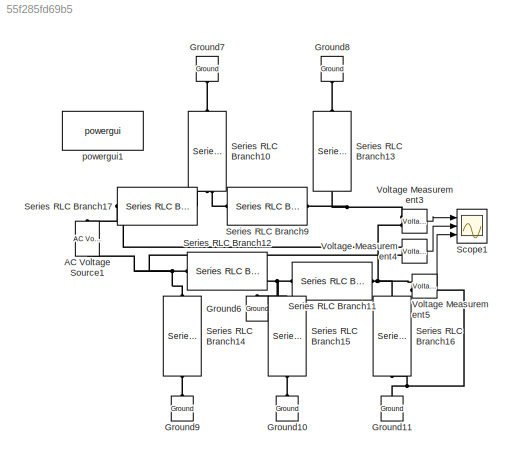
MODEL slx_55f285fd69b5
KIND model
CONFIG AbsTol = auto
CONFIG EnableMultiTasking = off
CONFIG FixedStep = auto
CONFIG MaxStep = auto
CONFIG MinStep = auto
CONFIG RelTol = 1e-3
CONFIG SampleTimeConstraint = Unconstrained
CONFIG SolverName = ode23t
CONFIG StartTime = 0.0
CONFIG StopTime = 1e-7
BLOCK [Reference] AC Voltage Source1  REF=powerlib/Electrical
Sources/AC Voltage Source
  NameLocation = right
  Ports = [0, 0, 0, 0, 0, 1, 1]
  SourceBlock = powerlib/Electrical\nSources/AC Voltage Source
  SourceProductBaseCode = PS
  SourceType = AC Voltage Source
BLOCK [Reference] Ground10  REF=powerlib/Elements/Ground
  NameLocation = right
  Ports = [0, 0, 0, 0, 0, 1]
  SourceBlock = powerlib/Elements/Ground
  SourceProductBaseCode = PS
  SourceType = Ground
BLOCK [Reference] Ground11  REF=powerlib/Elements/Ground
  NameLocation = right
  Ports = [0, 0, 0, 0, 0, 1]
  SourceBlock = powerlib/Elements/Ground
  SourceProductBaseCode = PS
  SourceType = Ground
BLOCK [Reference] Ground6  REF=powerlib/Elements/Ground
  NameLocation = right
  Ports = [0, 0, 0, 0, 0, 1]
  SourceBlock = powerlib/Elements/Ground
  SourceProductBaseCode = PS
  SourceType = Ground
BLOCK [Reference] Ground7  REF=powerlib/Elements/Ground
  NameLocation = left
  Ports = [0, 0, 0, 0, 0, 1]
  SourceBlock = powerlib/Elements/Ground
  SourceProductBaseCode = PS
  SourceType = Ground
BLOCK [Reference] Ground8  REF=powerlib/Elements/Ground
  NameLocation = left
  Ports = [0, 0, 0, 0, 0, 1]
  SourceBlock = powerlib/Elements/Ground
  SourceProductBaseCode = PS
  SourceType = Ground
BLOCK [Reference] Ground9  REF=powerlib/Elements/Ground
  NameLocation = right
  Ports = [0, 0, 0, 0, 0, 1]
  SourceBlock = powerlib/Elements/Ground
  SourceProductBaseCode = PS
  SourceType = Ground
BLOCK [Scope] Scope1
  Floating = off
  NumInputPorts = 3
  Ports = [3]
  ScopeSpecificationString = Simulink.scopes.TimeScopeBlockCfg('CurrentConfiguration', extmgr.ConfigurationSet(extmgr.Configuration('Core','General UI',true),extmgr.Configuration('Core','Source UI',true),extmgr.Configuration('Sources','WiredSimulink',true,'DataLoggingVariableName','ScopeData1'),extmgr.Configuration('Visuals','Time Domain',true,'SerializedDisplays',{struct('MinYLimReal','-5.56537','MaxYLimReal','5.44758','YLab...<+1548ch>
BLOCK [Reference] Series RLC Branch10  REF=powerlib/Elements/Series RLC Branch
  NameLocation = left
  Ports = [0, 0, 0, 0, 0, 1, 1]
  SourceBlock = powerlib/Elements/Series RLC Branch
  SourceProductBaseCode = PS
  SourceType = Series RLC Branch
BLOCK [Reference] Series RLC Branch11  REF=powerlib/Elements/Series RLC Branch
  Ports = [0, 0, 0, 0, 0, 1, 1]
  SourceBlock = powerlib/Elements/Series RLC Branch
  SourceProductBaseCode = PS
  SourceType = Series RLC Branch
BLOCK [Reference] Series RLC Branch12  REF=powerlib/Elements/Series RLC Branch
  Ports = [0, 0, 0, 0, 0, 1, 1]
  SourceBlock = powerlib/Elements/Series RLC Branch
  SourceProductBaseCode = PS
  SourceType = Series RLC Branch
BLOCK [Reference] Series RLC Branch13  REF=powerlib/Elements/Series RLC Branch
  NameLocation = left
  Ports = [0, 0, 0, 0, 0, 1, 1]
  SourceBlock = powerlib/Elements/Series RLC Branch
  SourceProductBaseCode = PS
  SourceType = Series RLC Branch
BLOCK [Reference] Series RLC Branch14  REF=powerlib/Elements/Series RLC Branch
  NameLocation = left
  Ports = [0, 0, 0, 0, 0, 1, 1]
  SourceBlock = powerlib/Elements/Series RLC Branch
  SourceProductBaseCode = PS
  SourceType = Series RLC Branch
BLOCK [Reference] Series RLC Branch15  REF=powerlib/Elements/Series RLC Branch
  NameLocation = left
  Ports = [0, 0, 0, 0, 0, 1, 1]
  SourceBlock = powerlib/Elements/Series RLC Branch
  SourceProductBaseCode = PS
  SourceType = Series RLC Branch
BLOCK [Reference] Series RLC Branch16  REF=powerlib/Elements/Series RLC Branch
  NameLocation = left
  Ports = [0, 0, 0, 0, 0, 1, 1]
  SourceBlock = powerlib/Elements/Series RLC Branch
  SourceProductBaseCode = PS
  SourceType = Series RLC Branch
BLOCK [Reference] Series RLC Branch17  REF=powerlib/Elements/Series RLC Branch
  Ports = [0, 0, 0, 0, 0, 1, 1]
  SourceBlock = powerlib/Elements/Series RLC Branch
  SourceProductBaseCode = PS
  SourceType = Series RLC Branch
BLOCK [Reference] Series RLC Branch9  REF=powerlib/Elements/Series RLC Branch
  Ports = [0, 0, 0, 0, 0, 1, 1]
  SourceBlock = powerlib/Elements/Series RLC Branch
  SourceProductBaseCode = PS
  SourceType = Series RLC Branch
BLOCK [Reference] Voltage Measurement3  REF=powerlib/Measurements/Voltage Measurement
  Ports = [0, 1, 0, 0, 0, 2]
  SourceBlock = powerlib/Measurements/Voltage Measurement
  SourceProductBaseCode = PS
  SourceType = Voltage Measurement
  UserDataPersistent = on
BLOCK [Reference] Voltage Measurement4  REF=powerlib/Measurements/Voltage Measurement
  Ports = [0, 1, 0, 0, 0, 2]
  SourceBlock = powerlib/Measurements/Voltage Measurement
  SourceProductBaseCode = PS
  SourceType = Voltage Measurement
  UserDataPersistent = on
BLOCK [Reference] Voltage Measurement5  REF=powerlib/Measurements/Voltage Measurement
  Ports = [0, 1, 0, 0, 0, 2]
  SourceBlock = powerlib/Measurements/Voltage Measurement
  SourceProductBaseCode = PS
  SourceType = Voltage Measurement
  UserDataPersistent = on
BLOCK [Reference] powergui1  REF=powerlib/powergui
  Ports = []
  Priority = 1
  SourceBlock = powerlib/powergui
  SourceProductBaseCode = PS
  SourceType = PSB option menu block
LINE Voltage Measurement3:1 -> Scope1:1
LINE Voltage Measurement4:1 -> Scope1:2
LINE Voltage Measurement5:1 -> Scope1:3
PNET net1: AC Voltage Source1:LConn1 -- Series RLC Branch12:LConn1 -- Series RLC Branch14:LConn1 -- Voltage Measurement4:LConn2
PNET net2: AC Voltage Source1:RConn1 -- Series RLC Branch17:LConn1 -- Voltage Measurement4:LConn1
PLINE Ground10:LConn1 -- Series RLC Branch15:RConn1
PNET net3: Ground11:LConn1 -- Series RLC Branch16:RConn1 -- Voltage Measurement5:LConn2
PNET net4: Ground6:LConn1 -- Series RLC Branch11:LConn1 -- Series RLC Branch12:RConn1 -- Series RLC Branch15:LConn1
PLINE Ground7:LConn1 -- Series RLC Branch10:RConn1
PLINE Ground8:LConn1 -- Series RLC Branch13:RConn1
PLINE Ground9:LConn1 -- Series RLC Branch14:RConn1
PNET net5: Series RLC Branch10:LConn1 -- Series RLC Branch17:RConn1 -- Series RLC Branch9:LConn1
PNET net6: Series RLC Branch11:RConn1 -- Series RLC Branch16:LConn1 -- Voltage Measurement3:LConn2 -- Voltage Measurement5:LConn1
PNET net7: Series RLC Branch13:LConn1 -- Series RLC Branch9:RConn1 -- Voltage Measurement3:LConn1
note: PNET lines group multi-terminal physical nets as a canonical sorted terminal list (undirected conserving connections); 2-terminal nets keep the pairwise PLINE form
